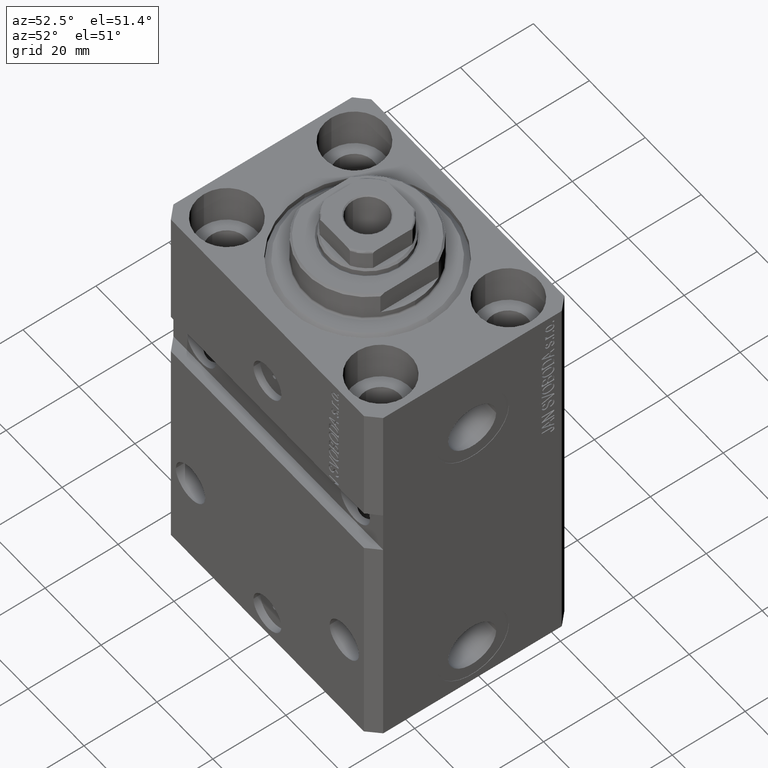
[diagram: clean part render]
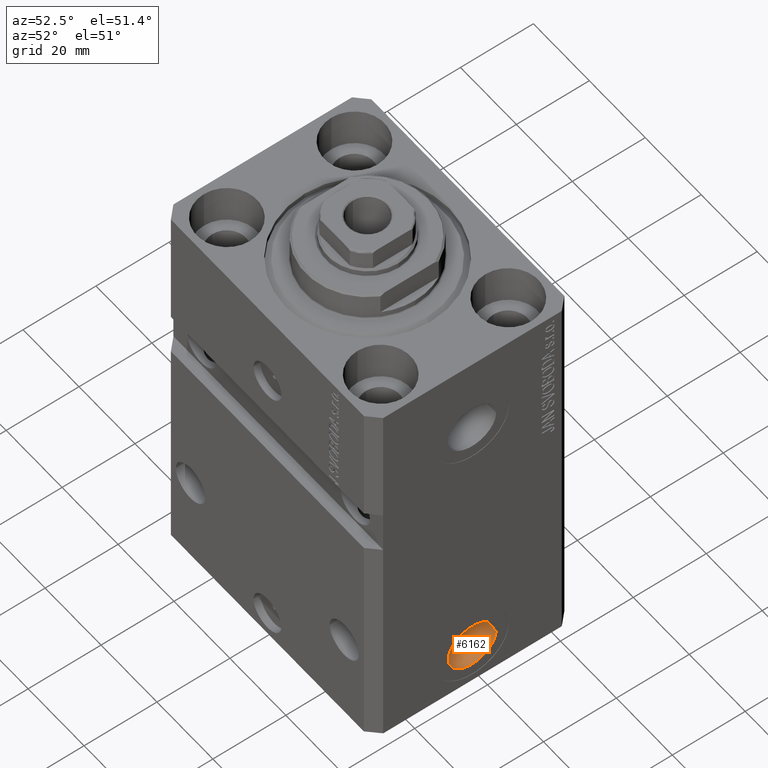
[diagram: same view with one face highlighted and labeled with its STEP entity id]
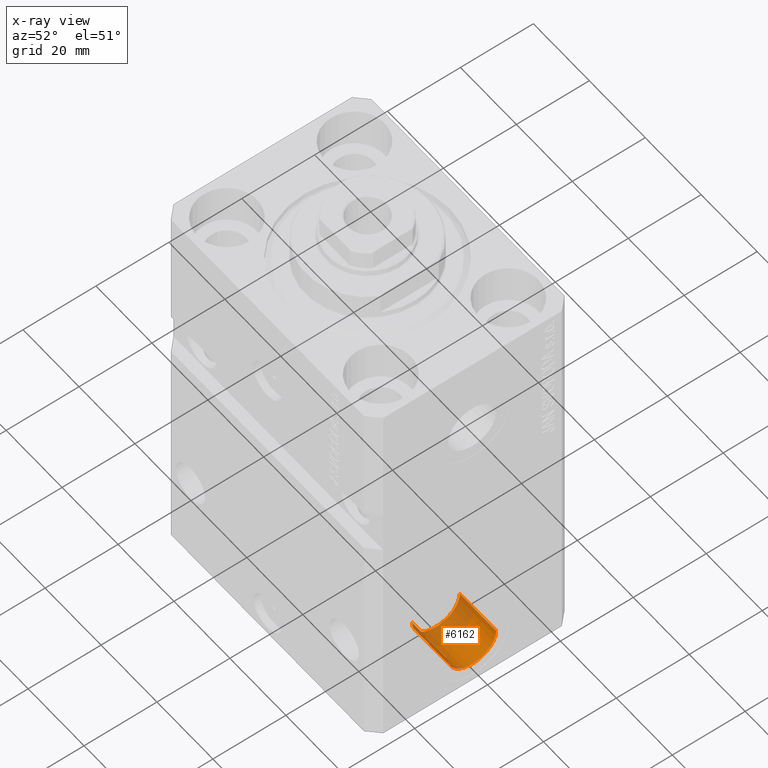
[diagram: x-ray of the same camera — body ghosted, the highlighted face saturated]
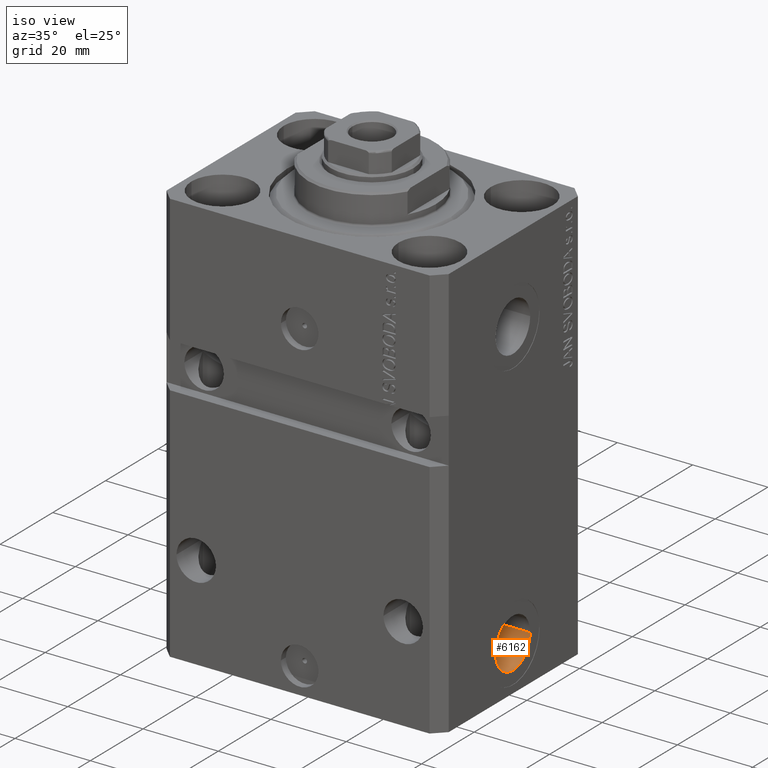
[diagram: same view with one face highlighted and labeled with its STEP entity id]
A machine part, auxiliary view. The second image highlights one B-rep face of the part: STEP entity #6162.
The next image is the same camera in x-ray: the body ghosted, the highlighted face saturated — about 39% of this face is hidden behind the body in this view.
A second angle (iso view) of the same face is appended — the face is thin or edge-on in the first view.
In plain terms, the highlighted cylindrical surface (edge-blend (fillet) strip) has radius 6.58 mm, axis along (1, -0, 0).
Its self-contained STEP definition (entity closure, byte-faithful):
#2145 = EDGE_CURVE ( 'NONE', #33553, #34081, #11671, .T. ) ;
#2496 = AXIS2_PLACEMENT_3D ( 'NONE', #18567, #26060, #14461 ) ;
#3707 = ORIENTED_EDGE ( 'NONE', *, *, #4961, .T. ) ;
#4961 = EDGE_CURVE ( 'NONE', #17266, #30566, #12578, .T. ) ;
#6162 = ADVANCED_FACE ( 'NONE', ( #19697 ), #30832, .F. ) ;
#6543 = DIRECTION ( 'NONE',  ( 1.000000000000000000, -1.334402673828349134E-14, 0.000000000000000000 ) ) ;
#9449 = LINE ( 'NONE', #42859, #30313 ) ;
#10379 = ORIENTED_EDGE ( 'NONE', *, *, #2145, .F. ) ;
#11671 = CIRCLE ( 'NONE', #17860, 6.579999999999987637 ) ;
#12578 = CIRCLE ( 'NONE', #2496, 6.579999999999987637 ) ;
#12676 = DIRECTION ( 'NONE',  ( 1.000000000000000000, -1.334402673828349292E-14, -0.000000000000000000 ) ) ;
#14461 = DIRECTION ( 'NONE',  ( 1.370906090437600963E-14, 1.000000000000000000, 0.000000000000000000 ) ) ;
#17266 = VERTEX_POINT ( 'NONE', #43265 ) ;
#17860 = AXIS2_PLACEMENT_3D ( 'NONE', #47219, #6543, #21320 ) ;
#18278 = ORIENTED_EDGE ( 'NONE', *, *, #37179, .F. ) ;
#18567 = CARTESIAN_POINT ( 'NONE',  ( 37.40000000000025437, -4.022543243901667481E-13, -98.00000000000000000 ) ) ;
#19350 = ORIENTED_EDGE ( 'NONE', *, *, #32917, .T. ) ;
#19465 = CARTESIAN_POINT ( 'NONE',  ( 24.40000000000025437, -2.287819767924813938E-13, -98.00000000000000000 ) ) ;
#19697 = FACE_OUTER_BOUND ( 'NONE', #23974, .T. ) ;
#21142 = CARTESIAN_POINT ( 'NONE',  ( 24.40000000000034319, 6.579999999999758487, -98.00000000000000000 ) ) ;
#21320 = DIRECTION ( 'NONE',  ( 1.318178933113077855E-14, 1.000000000000000000, 0.000000000000000000 ) ) ;
#23974 = EDGE_LOOP ( 'NONE', ( #10379, #19350, #3707, #18278 ) ) ;
#26060 = DIRECTION ( 'NONE',  ( 1.000000000000000000, -1.334402673828349134E-14, 0.000000000000000000 ) ) ;
#26955 = DIRECTION ( 'NONE',  ( 1.318178933113077855E-14, 1.000000000000000000, 0.000000000000000000 ) ) ;
#30313 = VECTOR ( 'NONE', #38760, 1000.000000000000000 ) ;
#30566 = VERTEX_POINT ( 'NONE', #41550 ) ;
#30832 = CYLINDRICAL_SURFACE ( 'NONE', #41971, 6.579999999999987637 ) ;
#32917 = EDGE_CURVE ( 'NONE', #33553, #17266, #35979, .T. ) ;
#33553 = VERTEX_POINT ( 'NONE', #34786 ) ;
#34081 = VERTEX_POINT ( 'NONE', #21142 ) ;
#34786 = CARTESIAN_POINT ( 'NONE',  ( 24.40000000000016911, -6.580000000000216787, -98.00000000000000000 ) ) ;
#35979 = LINE ( 'NONE', #40080, #44983 ) ;
#37179 = EDGE_CURVE ( 'NONE', #34081, #30566, #9449, .T. ) ;
#38760 = DIRECTION ( 'NONE',  ( 1.000000000000000000, -1.334402673828349292E-14, -0.000000000000000000 ) ) ;
#39362 = DIRECTION ( 'NONE',  ( 1.000000000000000000, -1.334402673828349292E-14, -0.000000000000000000 ) ) ;
#40080 = CARTESIAN_POINT ( 'NONE',  ( 24.40000000000016911, -6.580000000000216787, -98.00000000000000000 ) ) ;
#41550 = CARTESIAN_POINT ( 'NONE',  ( 37.40000000000033964, 6.579999999999585292, -98.00000000000000000 ) ) ;
#41971 = AXIS2_PLACEMENT_3D ( 'NONE', #19465, #12676, #26955 ) ;
#42859 = CARTESIAN_POINT ( 'NONE',  ( 24.40000000000034319, 6.579999999999758487, -98.00000000000000000 ) ) ;
#43265 = CARTESIAN_POINT ( 'NONE',  ( 37.40000000000016200, -6.580000000000389093, -98.00000000000000000 ) ) ;
#44983 = VECTOR ( 'NONE', #39362, 1000.000000000000000 ) ;
#47219 = CARTESIAN_POINT ( 'NONE',  ( 24.40000000000025437, -2.287819767924813938E-13, -98.00000000000000000 ) ) ;